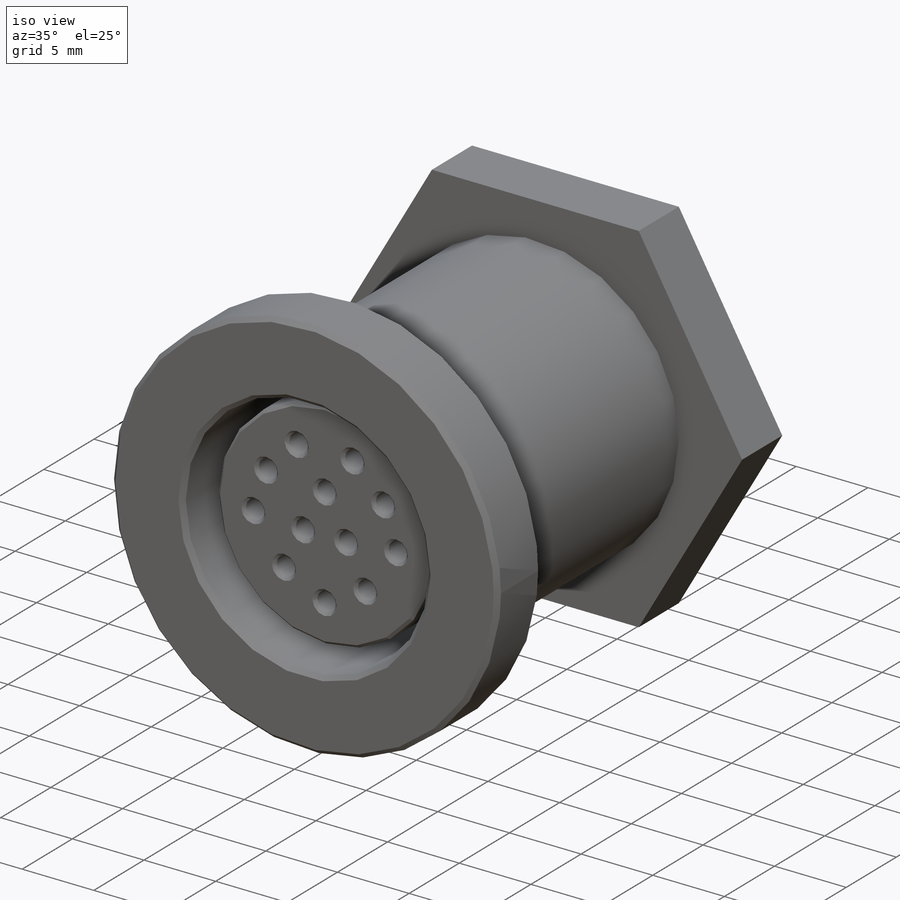
[diagram: iso view]
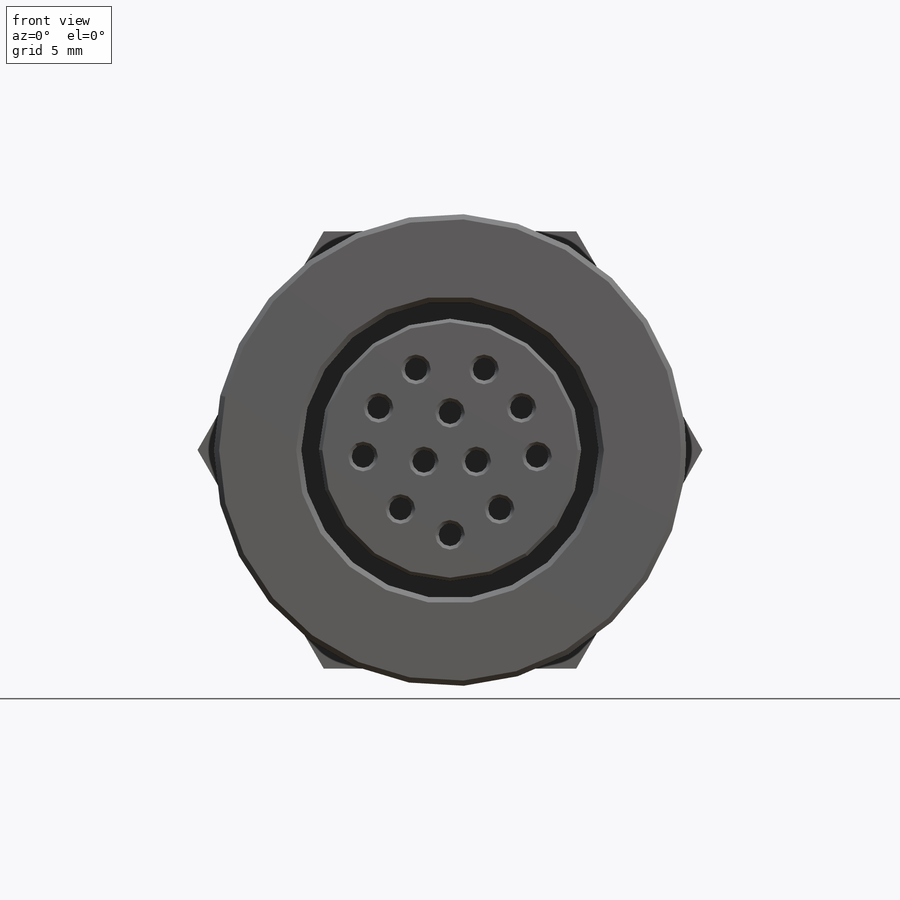
[diagram: front view]
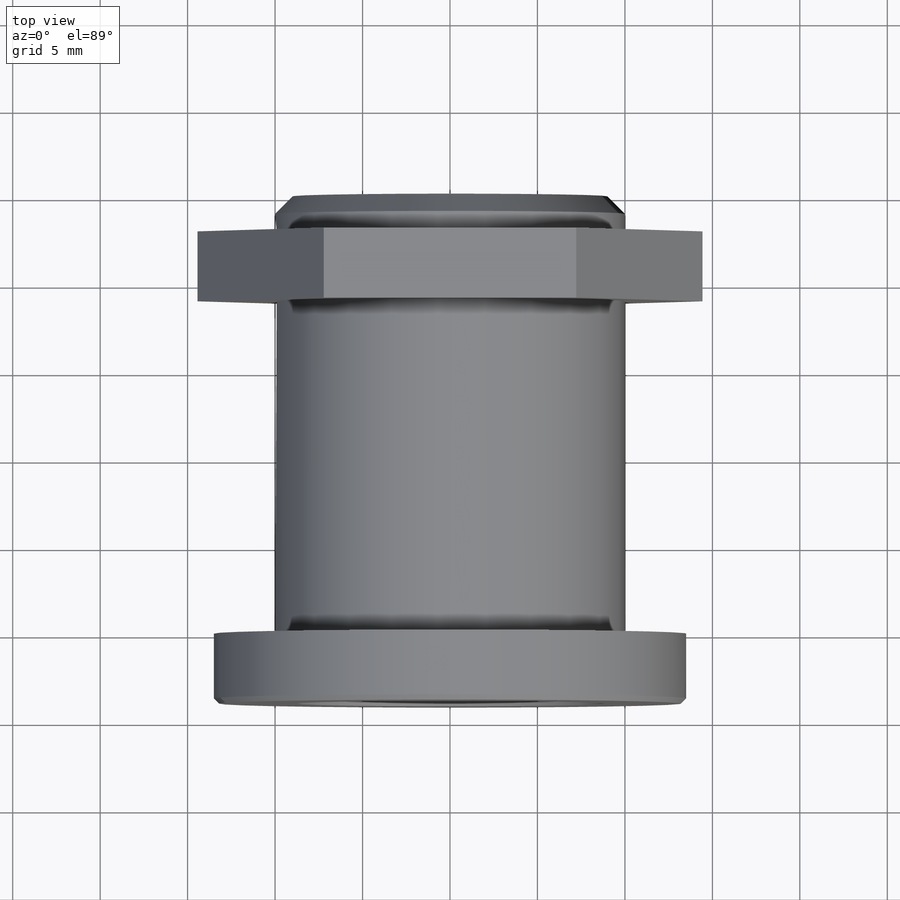
[diagram: top view]
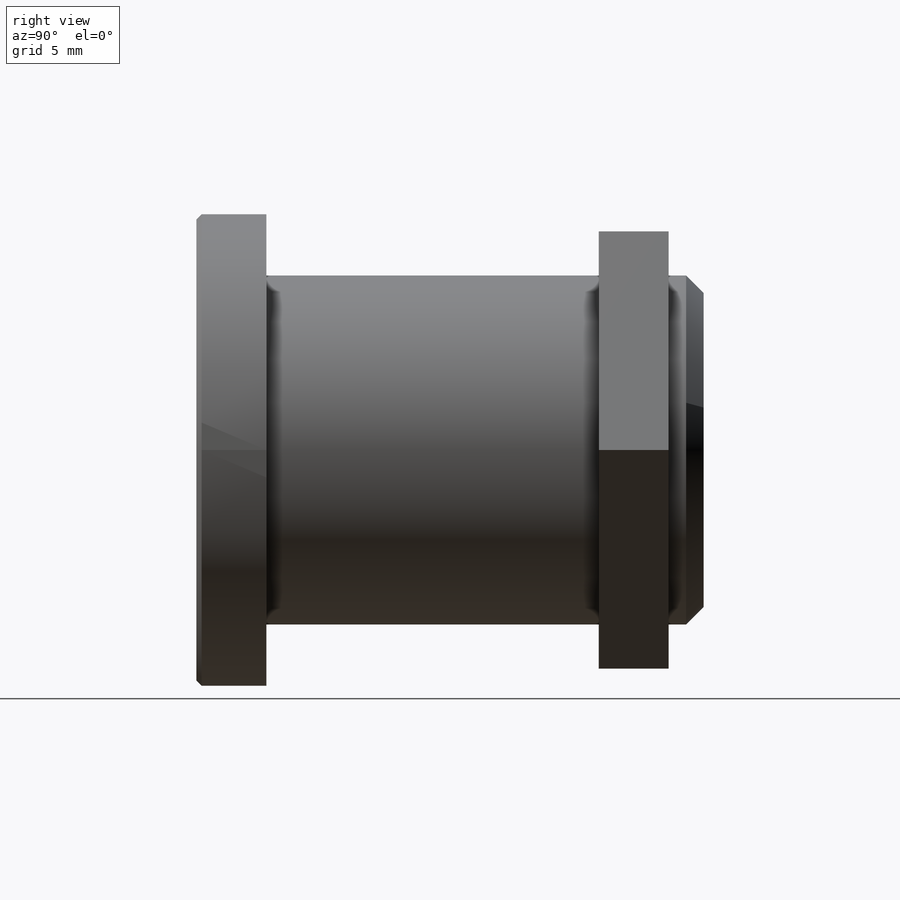
[diagram: right view]
SOLIDWORKS PART (.sldprt)
format: sldprt  version: not decoded by parser v0  size: 449,536 bytes
history: native  units: mm
features: sketch x8, extrude x4, cut_extrude x4, chamfer x4, material x1 (+11 scaffold rows collapsed)
feature tree (32):
  scaffold x11  (default folders/planes/origin — collapsed)
  material  "1060 Alloy"
  sketch  "Sketch1"  dims[D1=~1.173913mm]
  extrude  "Extrude1"  Depth=4mm
  sketch  "Sketch3"  dims[D1=8.0mm]
  extrude  "Extrude3"  Depth=25mm
  sketch  "Sketch7"  dims[D1=9.0mm]
  cut_extrude  "Cut-Extrude5"  Depth=16mm
  sketch  "Sketch4"  dims[D1=7.0mm]
  extrude  "Extrude4"  Depth=14mm
  chamfer  "Chamfer1"  Distance=0.2mm Angle=45deg
  chamfer  "Chamfer3"  Distance=0.3mm Angle=45deg
  sketch  "Sketch5"  dims[D1=11.0mm]
  cut_extrude  "Cut-Extrude1"  Depth=1.5mm
  sketch  "Sketch8"  dims[D1=6.0mm]
  cut_extrude  "Cut-Extrude6"  Depth=2mm
  chamfer  "Chamfer5"  Distance=1mm Angle=45deg
  sketch  "Sketch6"  dims[c1.D1=~0.677828mm c1.D5=0.35mm c2.D1=3.5mm c2.D2=3.5mm c2.D3=1.75mm c2.D4=1.75mm]
  cut_extrude  "Cut-Extrude2"  Depth=5mm
  chamfer  "Chamfer6"  Distance=0.2mm Angle=45deg
  sketch  "Sketch9"  dims[c1.D1=25.0mm c1.D2=25.0mm c1.D3=~14.433757mm c2.D3=120.0deg c3.D3=12.5mm]
  extrude  "Extrude5"  Depth=4mm
decode coverage: 20 of 20 modeling features carry decoded parameters
note: ~ marks probable driven/reference dimensions
note: suppression state not decoded; provenance and decode notes live in map.json
